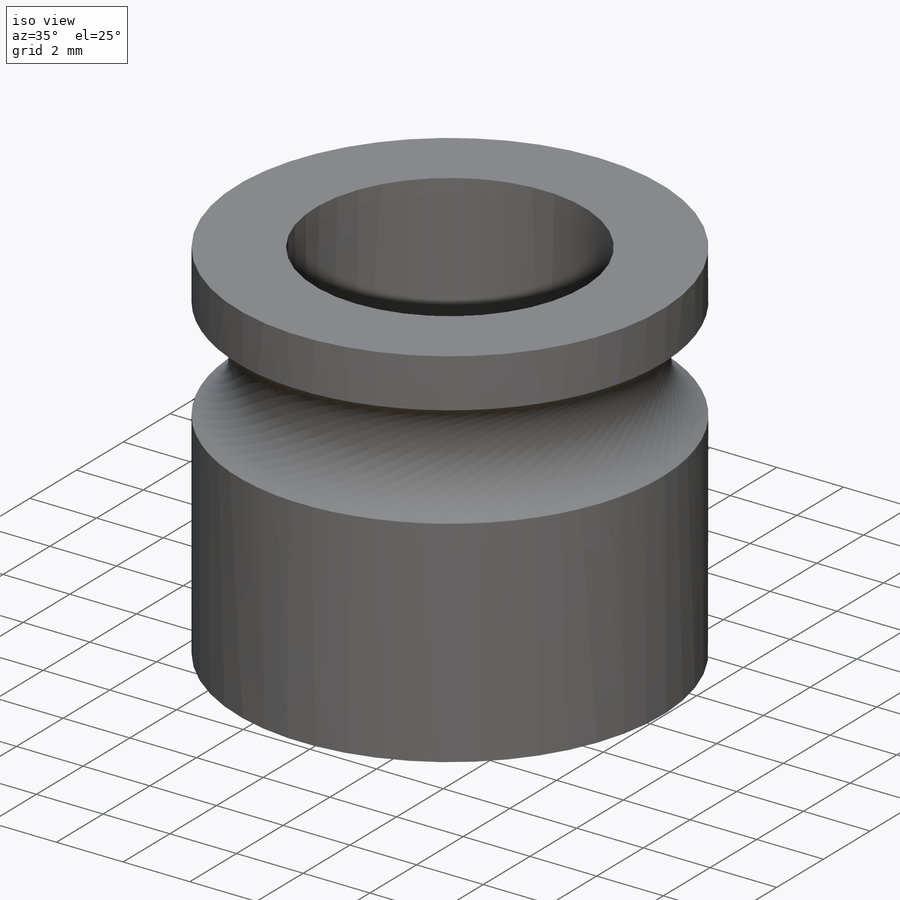
[diagram: iso view]
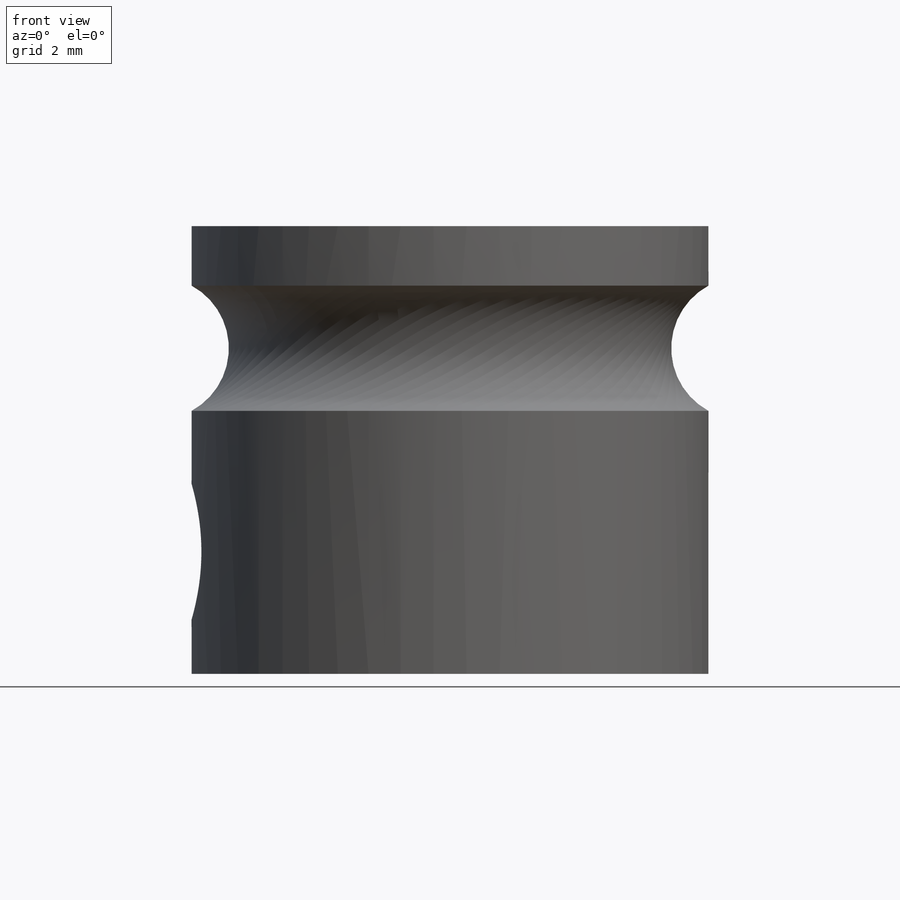
[diagram: front view]
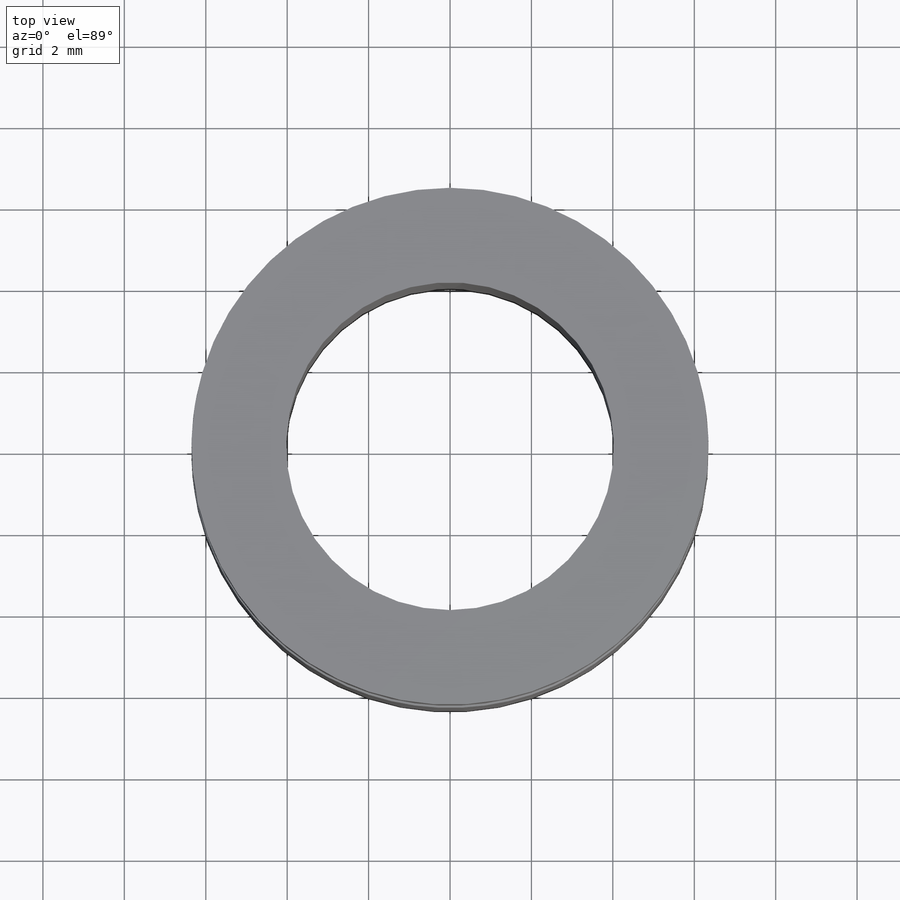
[diagram: top view]
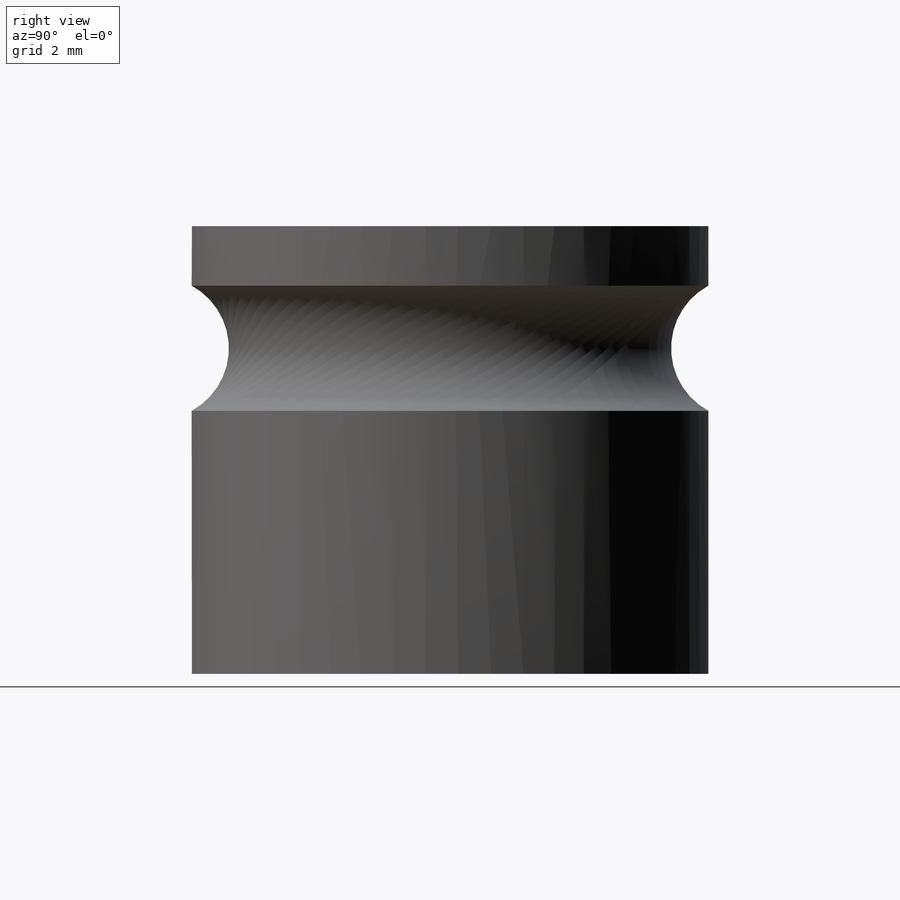
[diagram: right view]
SOLIDWORKS PART (.sldprt)
format: sldprt  version: not decoded by parser v0  size: 255,488 bytes
history: native  units: mm
features: sketch x3, cut_extrude x2, material x1, revolve x1, chamfer x1, plane x1 (+13 scaffold rows collapsed)
feature tree (22):
  scaffold x13  (default folders/planes/origin — collapsed)
  material  "Material <not specified>"
  sketch  "Sketch2"  dims[c1.D3=~2.537456mm c1.D5=1.8288mm c1.D1=11.0mm c1.D2=6.35mm c2.D3=3.0mm c2.D4=5.4356mm c2.D5=3.5mm]
  revolve  "Revolve1"  Angle=360deg
  sketch  "Sketch3"  dims[D1=8.05mm]
  cut_extrude  "Cut-Extrude1"  [1 undecoded]
  sketch  "Sketch4"  dims[D1=3.0mm D2=3.0mm]
  cut_extrude  "Cut-Extrude2"  [1 undecoded]
  chamfer  "Chamfer1"  Distance=0.3mm Angle=45deg
  plane  "Plane1"  Offset=3mm
decode coverage: 5 of 7 modeling features carry decoded parameters
note: ~ marks probable driven/reference dimensions
note: 2 parameter values undecoded
note: suppression state not decoded; provenance and decode notes live in map.json
